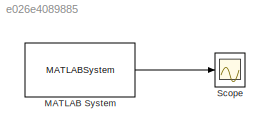
MODEL slx_e026e4089885
KIND model
CONFIG AbsTol = auto
CONFIG EnableMultiTasking = off
CONFIG FixedStep = 1/256
CONFIG MaxStep = auto
CONFIG MinStep = auto
CONFIG RelTol = 1e-3
CONFIG SampleTimeConstraint = Unconstrained
CONFIG Solver = FixedStepDiscrete
CONFIG SolverName = FixedStepDiscrete
CONFIG StartTime = 0.0
CONFIG StopTime = 10
BLOCK [MATLABSystem] MATLAB System
  MaskDisplay = disp('EEGImporterLSL');\nport_label('output',1,'y');
  MaskType = EEGImporterLSL
  Ports = [0, 1]
  SimulateUsing = Interpreted execution
  System = EEGImporterLSL
BLOCK [Scope] Scope
  NumInputPorts = 1
  Ports = [1]
  ScopeSpecificationString = Simulink.scopes.TimeScopeBlockCfg('CurrentConfiguration', extmgr.ConfigurationSet(extmgr.Configuration('Core','General UI',true),extmgr.Configuration('Core','Source UI',true),extmgr.Configuration('Sources','WiredSimulink',true),extmgr.Configuration('Visuals','Time Domain',true,'SerializedDisplays',{struct('MinYLimReal','-616.41026','MaxYLimReal','5547.69231','YLabelReal','','MinYLimMag',' 0.00000'...<+1747ch>
LINE MATLAB System:1 -> Scope:1
